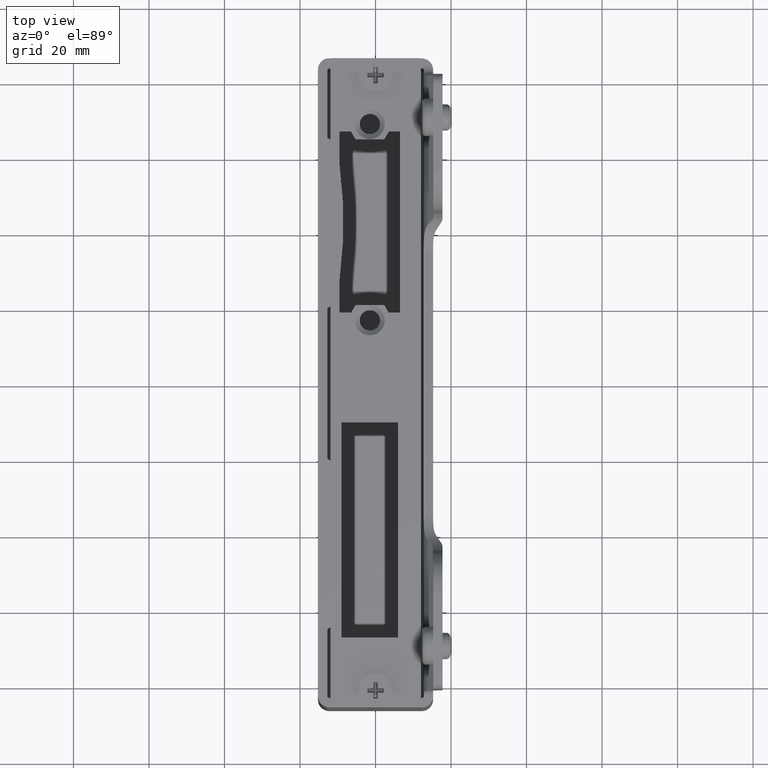
[diagram: clean part render]
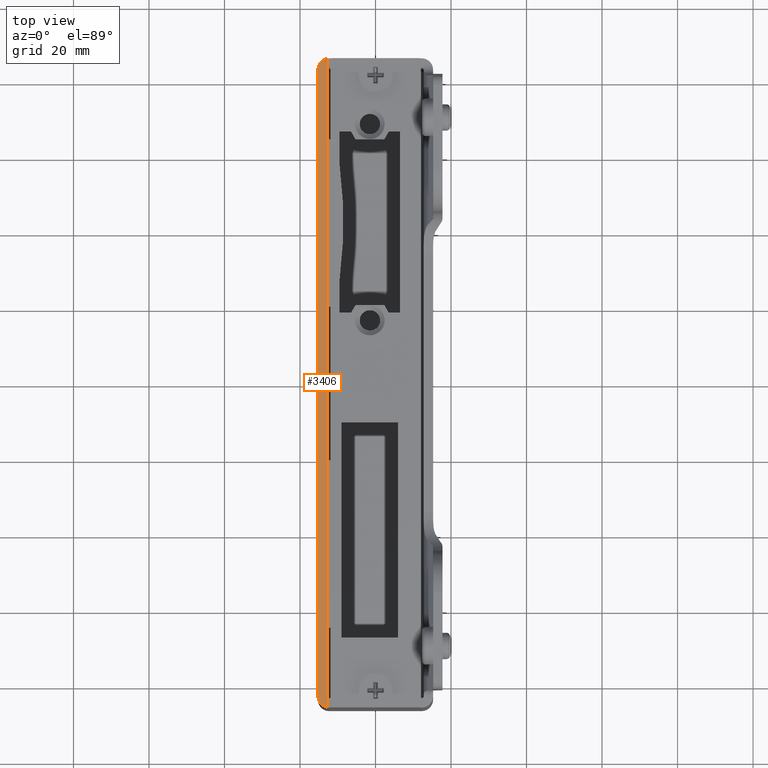
[diagram: same view with one face highlighted and labeled with its STEP entity id]
A machine part, top view. The second image highlights one B-rep face of the part: STEP entity #3406.
In plain terms, the highlighted planar face has unit normal (0, 0, 1).
Its self-contained STEP definition (entity closure, byte-faithful):
#792 = VERTEX_POINT ( 'NONE', #33442 ) ;
#2123 = CIRCLE ( 'NONE', #20004, 3.000000000000004441 ) ;
#3328 = CARTESIAN_POINT ( 'NONE',  ( -12.25000000000001243, 83.00000000000000000, 31.50000000000000000 ) ) ;
#3406 = ADVANCED_FACE ( 'NONE', ( #9223 ), #17022, .T. ) ;
#5601 = DIRECTION ( 'NONE',  ( 1.000000000000000000, 0.000000000000000000, 0.000000000000000000 ) ) ;
#9223 = FACE_OUTER_BOUND ( 'NONE', #30622, .T. ) ;
#11661 = DIRECTION ( 'NONE',  ( 0.000000000000000000, 0.000000000000000000, 1.000000000000000000 ) ) ;
#11788 = DIRECTION ( 'NONE',  ( 1.000000000000000000, 0.000000000000000000, 0.000000000000000000 ) ) ;
#13064 = CIRCLE ( 'NONE', #22648, 3.000000000000002665 ) ;
#13333 = CARTESIAN_POINT ( 'NONE',  ( -12.75000000000000888, 85.95803989154981650, 31.50000000000000000 ) ) ;
#13497 = CARTESIAN_POINT ( 'NONE',  ( -15.25000000000001243, 83.00000000000000000, 31.50000000000000000 ) ) ;
#15749 = LINE ( 'NONE', #13333, #26946 ) ;
#15889 = EDGE_CURVE ( 'NONE', #32924, #792, #2123, .T. ) ;
#15921 = DIRECTION ( 'NONE',  ( 1.254016970585643992E-16, -1.000000000000000000, 0.000000000000000000 ) ) ;
#16173 = ORIENTED_EDGE ( 'NONE', *, *, #35433, .T. ) ;
#16903 = DIRECTION ( 'NONE',  ( 1.000000000000000000, 0.000000000000000000, -0.000000000000000000 ) ) ;
#17022 = PLANE ( 'NONE',  #26329 ) ;
#17802 = CARTESIAN_POINT ( 'NONE',  ( -15.25000000000001243, 83.00000000000000000, 31.50000000000000000 ) ) ;
#19339 = ORIENTED_EDGE ( 'NONE', *, *, #22845, .T. ) ;
#20004 = AXIS2_PLACEMENT_3D ( 'NONE', #28310, #11661, #11788 ) ;
#22609 = DIRECTION ( 'NONE',  ( 0.000000000000000000, 0.000000000000000000, 1.000000000000000000 ) ) ;
#22648 = AXIS2_PLACEMENT_3D ( 'NONE', #3328, #22609, #5601 ) ;
#22845 = EDGE_CURVE ( 'NONE', #28028, #32924, #29502, .T. ) ;
#24473 = EDGE_CURVE ( 'NONE', #27962, #28028, #13064, .T. ) ;
#24651 = DIRECTION ( 'NONE',  ( -1.009052485471659042E-16, 1.000000000000000000, -0.000000000000000000 ) ) ;
#26329 = AXIS2_PLACEMENT_3D ( 'NONE', #30602, #33865, #16903 ) ;
#26946 = VECTOR ( 'NONE', #24651, 1000.000000000000000 ) ;
#27962 = VERTEX_POINT ( 'NONE', #31002 ) ;
#28028 = VERTEX_POINT ( 'NONE', #17802 ) ;
#28310 = CARTESIAN_POINT ( 'NONE',  ( -12.24999999999999112, -82.99999999999997158, 31.50000000000000000 ) ) ;
#29234 = ORIENTED_EDGE ( 'NONE', *, *, #15889, .T. ) ;
#29502 = LINE ( 'NONE', #13497, #35083 ) ;
#30602 = CARTESIAN_POINT ( 'NONE',  ( -12.25000000000001243, 83.00000000000000000, 31.50000000000000000 ) ) ;
#30622 = EDGE_LOOP ( 'NONE', ( #34430, #19339, #29234, #16173 ) ) ;
#31002 = CARTESIAN_POINT ( 'NONE',  ( -12.75000000000000888, 85.95803989154981650, 31.50000000000000000 ) ) ;
#32924 = VERTEX_POINT ( 'NONE', #34656 ) ;
#33442 = CARTESIAN_POINT ( 'NONE',  ( -12.74999999999999289, -85.95803989154978808, 31.50000000000000000 ) ) ;
#33865 = DIRECTION ( 'NONE',  ( 0.000000000000000000, 0.000000000000000000, 1.000000000000000000 ) ) ;
#34430 = ORIENTED_EDGE ( 'NONE', *, *, #24473, .T. ) ;
#34656 = CARTESIAN_POINT ( 'NONE',  ( -15.24999999999999112, -82.99999999999997158, 31.50000000000000000 ) ) ;
#35083 = VECTOR ( 'NONE', #15921, 1000.000000000000000 ) ;
#35433 = EDGE_CURVE ( 'NONE', #792, #27962, #15749, .T. ) ;